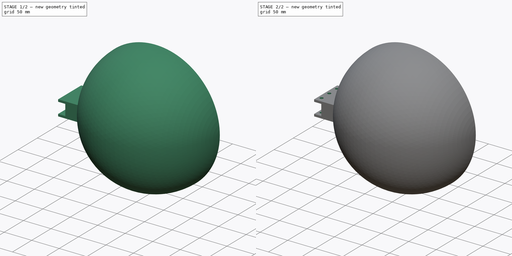
[diagram: build sequence overview — one tinted view per stage of 2, left to right]
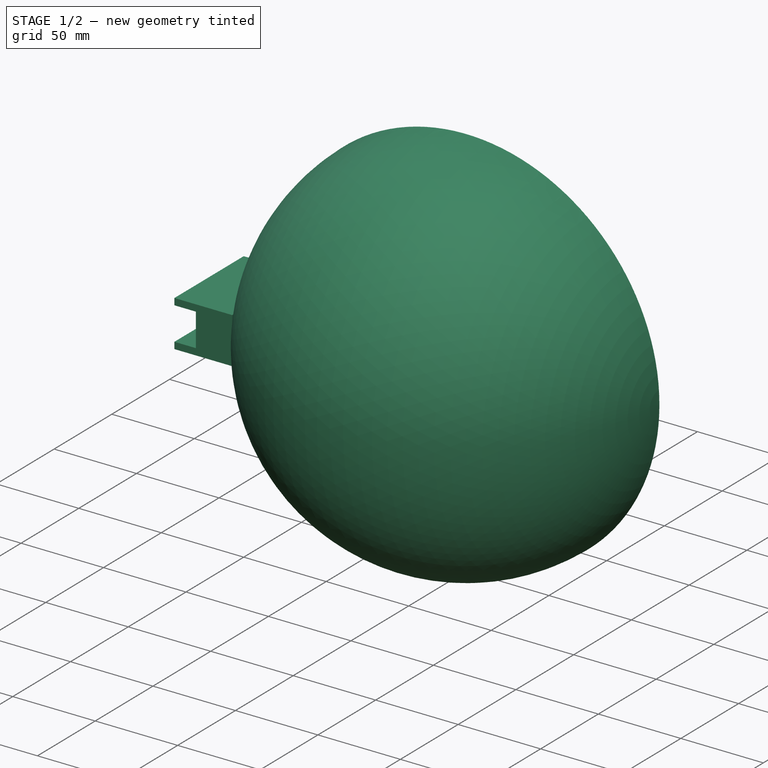
[diagram: stage 1 of 2 — iso view after this stage's code; geometry added in this stage tinted green]
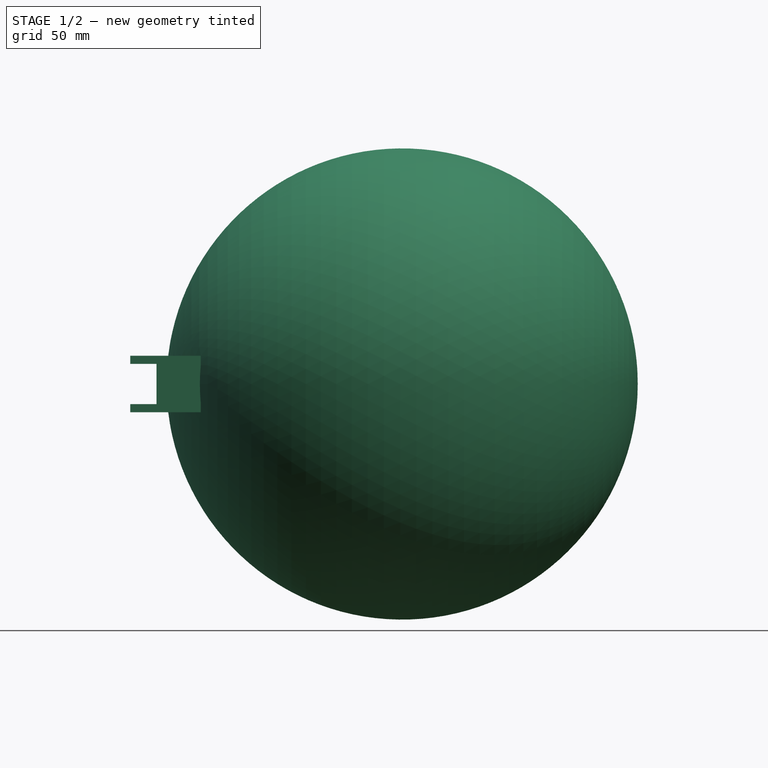
[diagram: stage 1 of 2 — front view after this stage's code; geometry added in this stage tinted green]
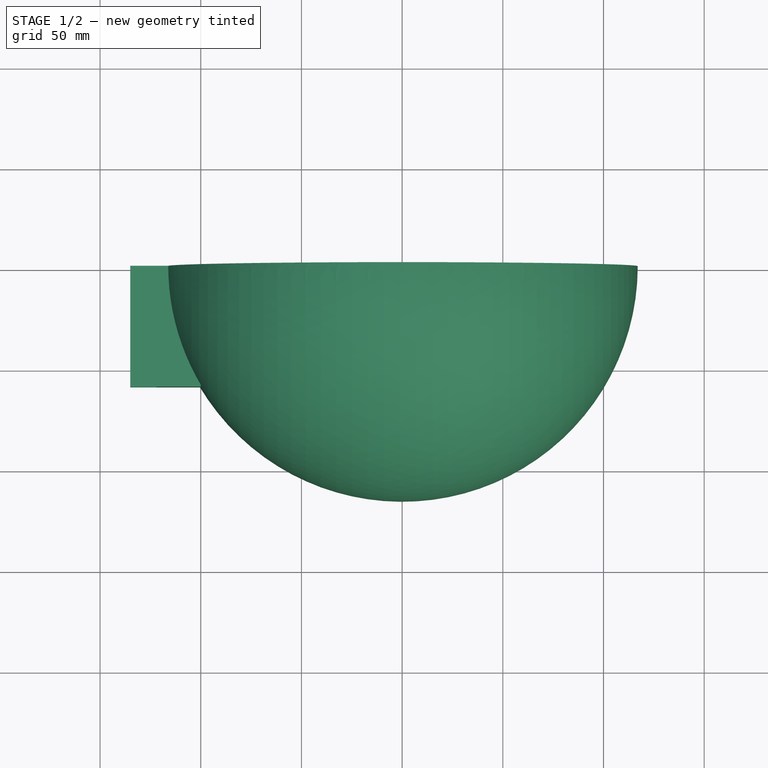
[diagram: stage 1 of 2 — top view after this stage's code; geometry added in this stage tinted green]
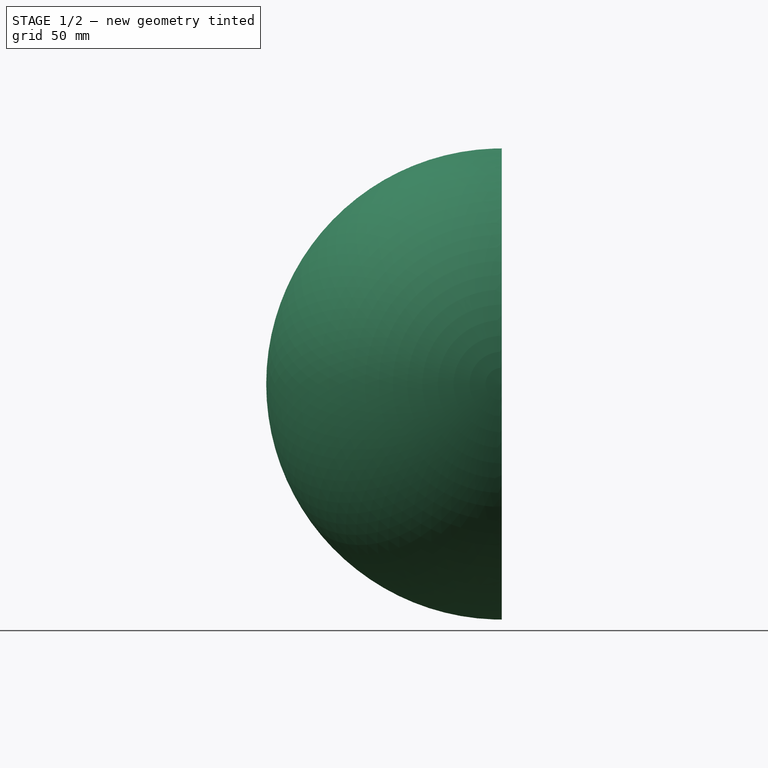
[diagram: stage 1 of 2 — right view after this stage's code; geometry added in this stage tinted green]
FCSTD DOCUMENT  (FreeCAD 0.18R16110 (Git))
Label: peltonlarge_v3test
License: All rights reserved
LicenseURL: http://en.wikipedia.org/wiki/All_rights_reserved
objects: Sketcher::SketchObject×3, PartDesign::Revolution×1, PartDesign::Pad×1, PartDesign::Hole×1, PartDesign::Body×1
note: 10 computed .brp shape members not serialized (recipe doc carries the construction recipe); baked Part::Feature solids carry a one-line shape summary decoded from their .brp

FEATURE [Sketcher::SketchObject] Sketch
  MapMode = 5
  Placement = pos=(0,0,0) rot=(1,0,0;1.5708rad)
  Support = -> [XZ_Plane]
  sketch-geometry (4):
    g0: ArcOfCircle CenterX=0 CenterY=0 CenterZ=0 NormalX=0 NormalY=0 NormalZ=1 AngleXU=0 Radius=117 StartAngle=0 EndAngle=3.14159
    g1: ArcOfCircle CenterX=0 CenterY=0 CenterZ=0 NormalX=0 NormalY=0 NormalZ=1 AngleXU=0 Radius=113 StartAngle=0 EndAngle=3.14159
    g2: LineSegment StartX=-117 StartY=1.43e-14 StartZ=0 EndX=-113 EndY=1.38e-14 EndZ=0
    g3: LineSegment StartX=113 StartY=0 StartZ=0 EndX=117 EndY=0 EndZ=0
  constraints (12):
    c: Coincident(g0,g-1)
    c: PointOnObject(g0,g-1)
    c: PointOnObject(g0,g-1)
    c: Radius(g0) = 117
    c: Coincident(g1,g0)
    c: PointOnObject(g1,g-1)
    c: PointOnObject(g1,g-1)
    c: Radius(g1) = 113
    c: Coincident(g2,g0)
    c: Coincident(g2,g1)
    c: Coincident(g3,g1)
    c: Coincident(g3,g0)
FEATURE [PartDesign::Revolution] Revolution
  Angle = 180
  Axis = (1,0,0)
  Base = (0,0,0)
  Placement = pos=(0,0,0) rot=(1,0,0;1.5708rad)
  Profile = -> Sketch
  ReferenceAxis = -> X_Axis
FEATURE [Sketcher::SketchObject] Sketch001
  MapMode = 5
  Placement = pos=(0,0,0) rot=(1,0,0;1.5708rad)
  Support = -> [XZ_Plane]
  sketch-geometry (8):
    g0: LineSegment StartX=-100 StartY=14 StartZ=0 EndX=-100 EndY=-14 EndZ=0
    g1: LineSegment StartX=-100 StartY=-14 StartZ=0 EndX=-135 EndY=-14 EndZ=0
    g2: LineSegment StartX=-135 StartY=-14 StartZ=0 EndX=-135 EndY=-10 EndZ=0
    g3: LineSegment StartX=-135 StartY=-10 StartZ=0 EndX=-122 EndY=-10 EndZ=0
    g4: LineSegment StartX=-122 StartY=-10 StartZ=0 EndX=-122 EndY=10 EndZ=0
    g5: LineSegment StartX=-122 StartY=10 StartZ=0 EndX=-135 EndY=10 EndZ=0
    g6: LineSegment StartX=-135 StartY=10 StartZ=0 EndX=-135 EndY=14 EndZ=0
    g7: LineSegment StartX=-135 StartY=14 StartZ=0 EndX=-100 EndY=14 EndZ=0
  constraints (23):
    c: Coincident(g0,g1)
    c: Horizontal(g1)
    c: Horizontal(g3)
    c: Coincident(g3,g4)
    c: Coincident(g4,g5)
    c: Coincident(g5,g6)
    c: Vertical(g6)
    c: Coincident(g6,g7)
    c: Symmetric(g0,g0,g-1)
    c: Symmetric(g4,g3,g-1)
    c: Symmetric(g5,g2,g-1)
    c: Vertical(g2)
    c: Symmetric(g1,g6,g-1)
    c: Equal(g3,g5)
    c: Equal(g7,g1)
    c: Equal(g2,g6)
    c: Horizontal(g5)
    c: Horizontal(g7)
    c: DistanceX(g0) = -100
    c: Distance(g4) = 20
    c: Distance(g6) = 4
    c: Distance(g5) = 13
    c: Distance(g7) = 35
FEATURE [PartDesign::Pad] Pad
  BaseFeature = -> Revolution
  Length = 60
  Length2 = 100
  Placement = pos=(0,0,0) rot=(1,0,0;1.5708rad)
  Profile = -> Sketch001
  Type = 0
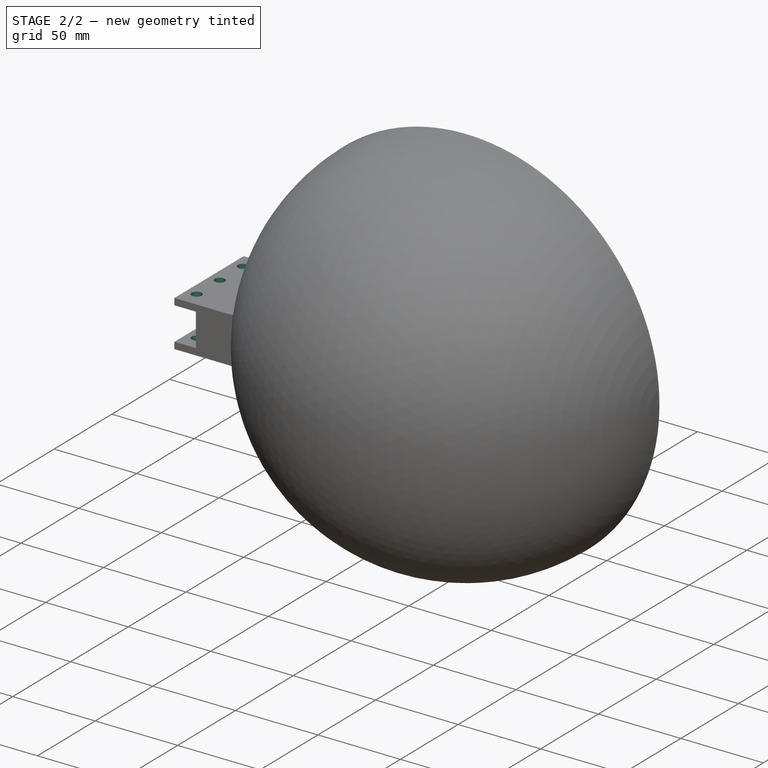
[diagram: stage 2 of 2 — iso view after this stage's code; geometry added in this stage tinted green]
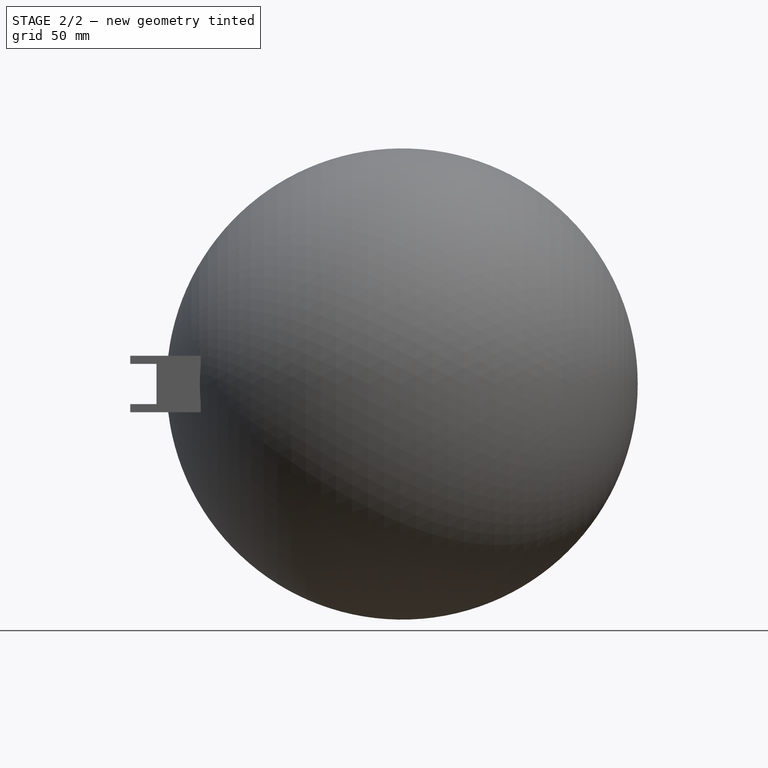
[diagram: stage 2 of 2 — front view after this stage's code; geometry added in this stage tinted green]
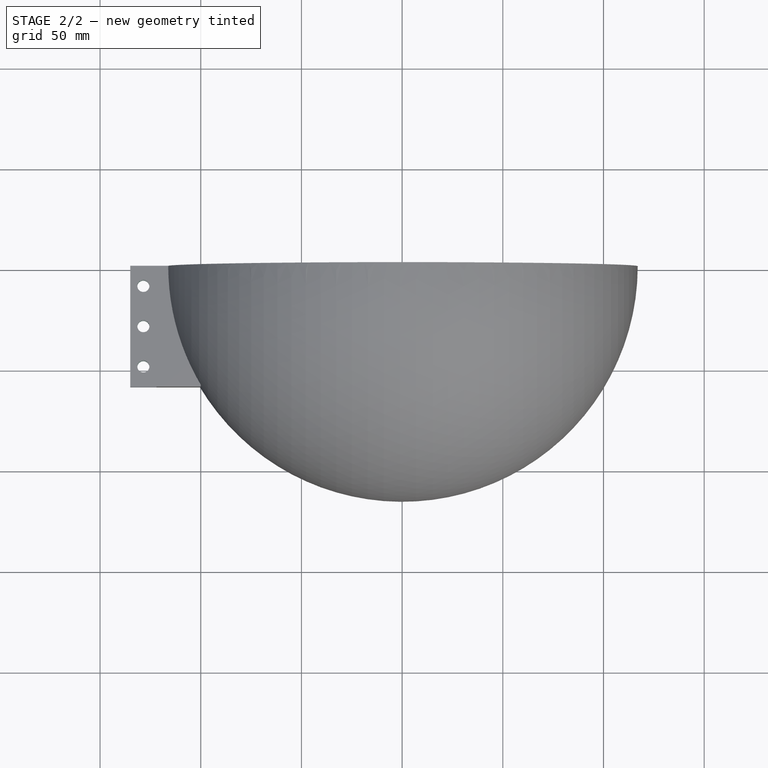
[diagram: stage 2 of 2 — top view after this stage's code; geometry added in this stage tinted green]
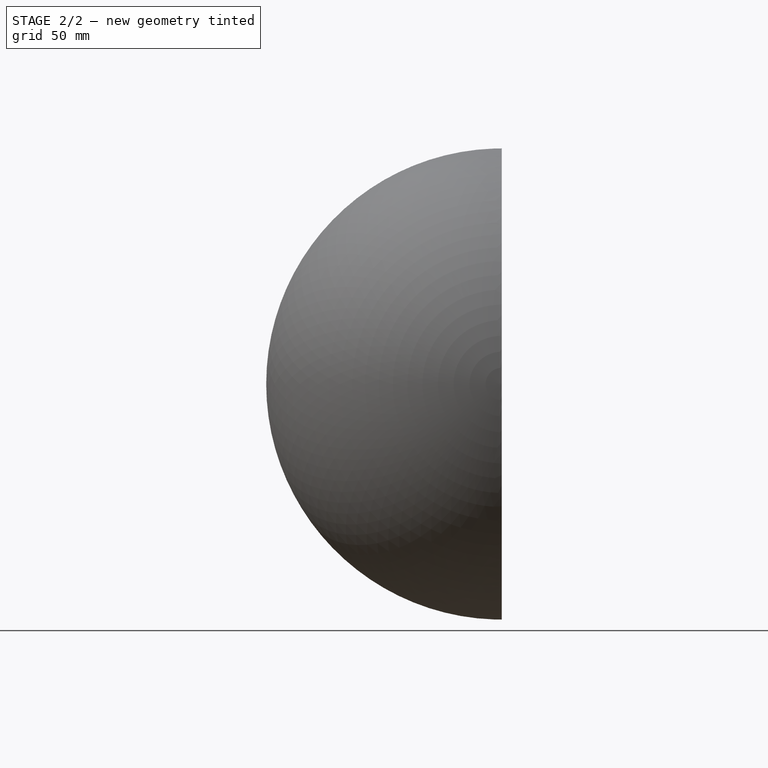
[diagram: stage 2 of 2 — right view after this stage's code; geometry added in this stage tinted green]
FEATURE [Sketcher::SketchObject] Sketch002
  MapMode = 5
  Placement = pos=(0,9.3e-15,14) rot=(0,0,1;3.14159rad)
  Support = -> [Pad]
  sketch-geometry (5):
    g0: LineSegment [constr] StartX=1e-16 StartY=30 StartZ=0 EndX=128.5 EndY=30 EndZ=0
    g1: LineSegment [constr] StartX=128.5 StartY=10 StartZ=0 EndX=128.5 EndY=50 EndZ=0
    g2: Circle CenterX=128.5 CenterY=10 CenterZ=0 NormalX=0 NormalY=0 NormalZ=1 AngleXU=0 Radius=2.55
    g3: Circle CenterX=128.5 CenterY=30 CenterZ=0 NormalX=0 NormalY=0 NormalZ=1 AngleXU=0 Radius=2.55
    g4: Circle CenterX=128.5 CenterY=50 CenterZ=0 NormalX=0 NormalY=0 NormalZ=1 AngleXU=0 Radius=2.55
  constraints (14):
    c: PointOnObject(g0,g-2)
    c: Horizontal(g0)
    c: Distance(g0) = 128.5
    c: DistanceY(g0) = 30
    c: Vertical(g1)
    c: PointOnObject(g0,g1)
    c: DistanceY(g1) = 10
    c: DistanceY(g1) = 50
    c: Coincident(g2,g1)
    c: Coincident(g3,g0)
    c: Coincident(g4,g1)
    c: Equal(g4,g3)
    c: Equal(g3,g2)
    c: Radius(g4) = 2.55
FEATURE [PartDesign::Hole] Hole
  BaseFeature = -> Pad
  Depth = 25
  DepthType = 1
  Diameter = 6
  DrillPoint = 1
  DrillPointAngle = 118
  HoleCutCountersinkAngle = 90
  HoleCutDepth = 0
  HoleCutDiameter = 0
  HoleCutType = 0
  ModelActualThread = false
  Placement = pos=(0,0,0) rot=(1,0,0;1.5708rad)
  Profile = -> Sketch002
  Tapered = false
  TaperedAngle = 90
  ThreadAngle = 0
  ThreadClass = 0
  ThreadCutOffInner = 0
  ThreadCutOffOuter = 0
  ThreadDirection = 0
  ThreadFit = 0
  ThreadPitch = 0
  ThreadSize = 0
  ThreadType = 0
  Threaded = false
FEATURE [PartDesign::Body] Body
  Group = -> [Sketch,Revolution,Sketch001,Pad,Sketch002,Hole]
  Origin = -> Origin
  Tip = -> Hole
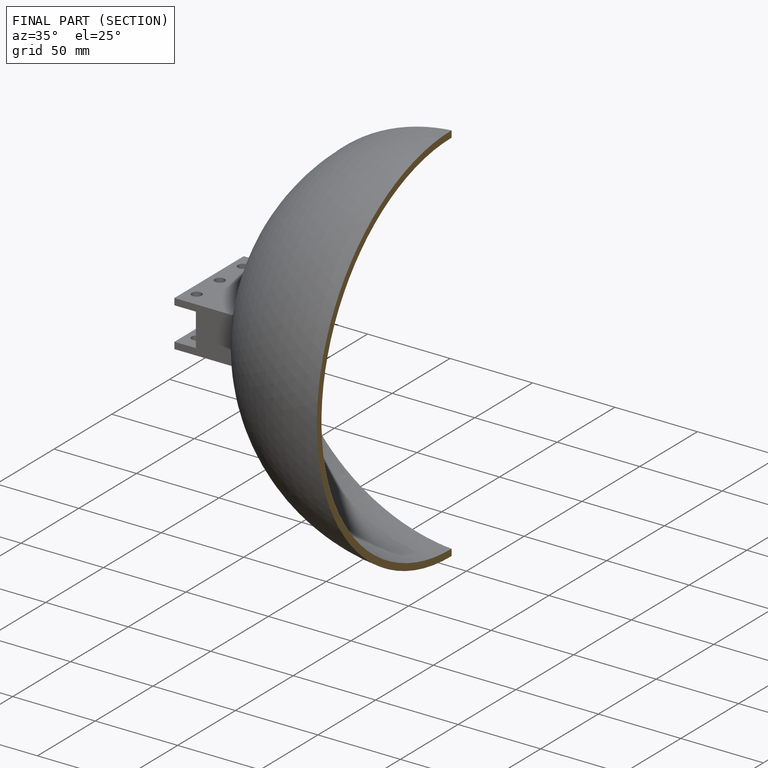
[diagram: finished part — half-section view (interior)]
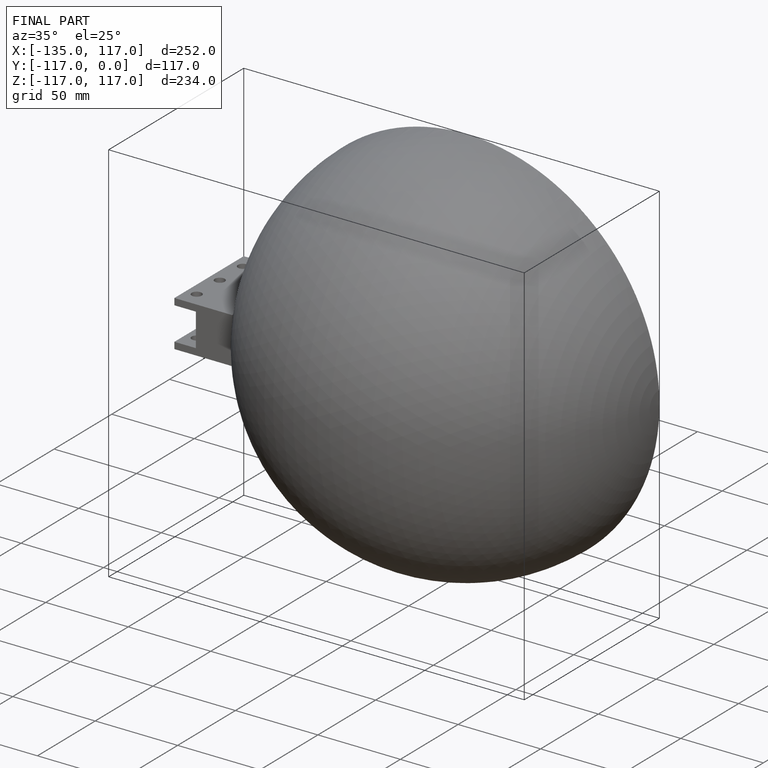
[diagram: finished part — iso view with bounding-box wireframe]
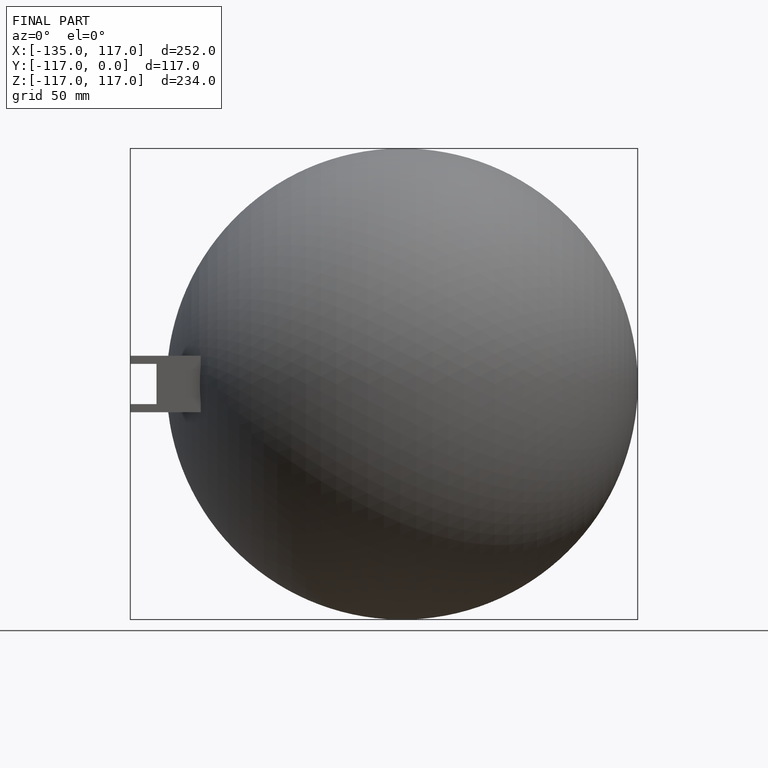
[diagram: finished part — front view with bounding-box wireframe]
